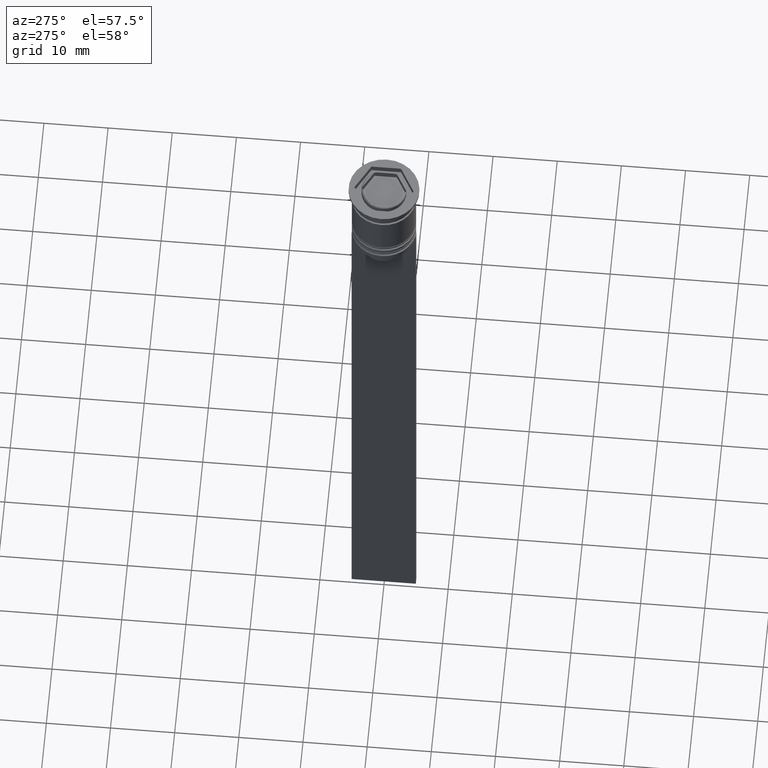
[diagram: clean part render]
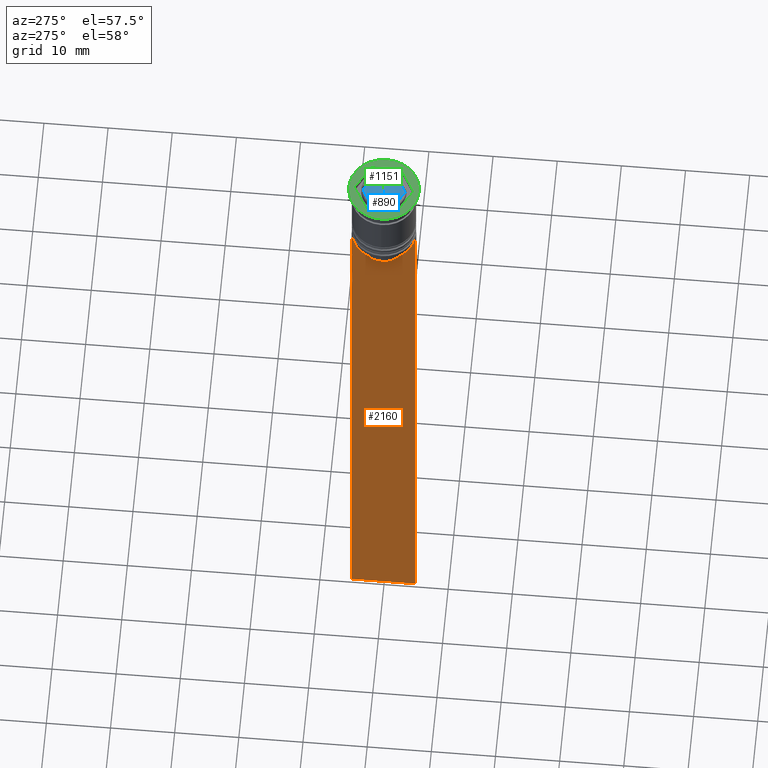
[diagram: same view with three faces highlighted in distinct colors, each labeled with its STEP entity id]
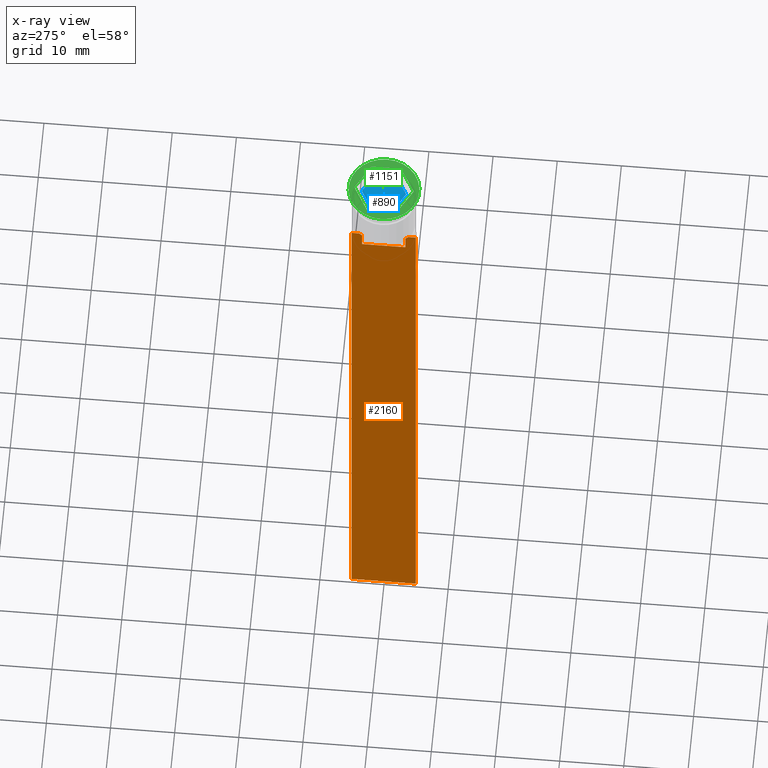
[diagram: x-ray of the same camera — body ghosted, the three highlighted faces saturated]
A machine part, auxiliary view with three faces highlighted in distinct colors.
The next image is the same camera in x-ray (body ghosted, the three faces saturated) — at least one of them is partly hidden behind the body in this view.
Their STEP definitions:

[orange] entity #2160 — the highlighted planar face has unit normal (-1, 0, 0).
#68 = ORIENTED_EDGE ( 'NONE', *, *, #1743, .F. ) ;
#85 = VECTOR ( 'NONE', #1137, 1000.000000000000000 ) ;
#95 = EDGE_CURVE ( 'NONE', #1745, #1103, #1935, .T. ) ;
#111 = DIRECTION ( 'NONE',  ( -1.000000000000000000, 0.000000000000000000, 0.000000000000000000 ) ) ;
#117 = VERTEX_POINT ( 'NONE', #956 ) ;
#145 = DIRECTION ( 'NONE',  ( 0.000000000000000000, 1.000000000000000000, 0.000000000000000000 ) ) ;
#165 = CARTESIAN_POINT ( 'NONE',  ( -0.5000000000000000000, 5.000000000000000888, -12.50000000000000000 ) ) ;
#172 = CARTESIAN_POINT ( 'NONE',  ( -0.5000000000000000000, -3.699658232838647365, -12.66676999593996555 ) ) ;
#191 = EDGE_LOOP ( 'NONE', ( #1365, #1288, #1569, #334, #2091, #2148, #1248, #68, #2060, #1052, #1107, #2568 ) ) ;
#192 = CARTESIAN_POINT ( 'NONE',  ( -0.5000000000000000000, 5.000000000000000888, -112.5000000000000000 ) ) ;
#273 = CARTESIAN_POINT ( 'NONE',  ( -0.5000000000000000000, -4.999999999999999112, -12.50000000000000000 ) ) ;
#277 = EDGE_CURVE ( 'NONE', #1058, #2197, #399, .T. ) ;
#297 = CARTESIAN_POINT ( 'NONE',  ( -0.5000000000000000000, -3.363034344160045652, -15.50000000000000000 ) ) ;
#321 = VECTOR ( 'NONE', #2280, 1000.000000000000000 ) ;
#334 = ORIENTED_EDGE ( 'NONE', *, *, #1363, .T. ) ;
#370 = CARTESIAN_POINT ( 'NONE',  ( -0.5000000000000000000, -4.999999999999999112, -112.5000000000000000 ) ) ;
#399 = LINE ( 'NONE', #2224, #1889 ) ;
#436 = CARTESIAN_POINT ( 'NONE',  ( -0.5000000000000000000, -3.867815921162742754, -12.50000000000000000 ) ) ;
#474 = CARTESIAN_POINT ( 'NONE',  ( -0.5000000000000000000, 3.363034344160045208, -13.00000000000000178 ) ) ;
#485 = DIRECTION ( 'NONE',  ( 0.000000000000000000, -1.000000000000000000, 0.000000000000000000 ) ) ;
#496 = DIRECTION ( 'NONE',  ( 0.000000000000000000, 0.000000000000000000, 1.000000000000000000 ) ) ;
#498 = CARTESIAN_POINT ( 'NONE',  ( -0.5000000000000000000, -4.999999999999999112, -12.50000000000000000 ) ) ;
#499 = VECTOR ( 'NONE', #513, 1000.000000000000000 ) ;
#513 = DIRECTION ( 'NONE',  ( 0.000000000000000000, -1.000000000000000000, 0.000000000000000000 ) ) ;
#589 = CARTESIAN_POINT ( 'NONE',  ( -0.5000000000000000000, -4.999999999999999112, -12.50000000000000000 ) ) ;
#615 = VECTOR ( 'NONE', #2256, 1000.000000000000000 ) ;
#641 = EDGE_CURVE ( 'NONE', #2197, #117, #1787, .T. ) ;
#685 = DIRECTION ( 'NONE',  ( 0.000000000000000000, -1.000000000000000000, 0.000000000000000000 ) ) ;
#730 = PLANE ( 'NONE',  #2381 ) ;
#732 = CARTESIAN_POINT ( 'NONE',  ( -0.5000000000000000000, -4.999999999999999112, -112.5000000000000000 ) ) ;
#733 = EDGE_CURVE ( 'NONE', #2115, #1806, #1808, .T. ) ;
#746 = CARTESIAN_POINT ( 'NONE',  ( -0.5000000000000000000, -4.999999999999999112, -12.50000000000000000 ) ) ;
#898 = CARTESIAN_POINT ( 'NONE',  ( -0.5000000000000000000, 3.363034344160045208, 0.000000000000000000 ) ) ;
#902 = VERTEX_POINT ( 'NONE', #1734 ) ;
#925 = VECTOR ( 'NONE', #145, 1000.000000000000000 ) ;
#956 = CARTESIAN_POINT ( 'NONE',  ( -0.5000000000000000000, -3.363034344160045208, -13.00000000000000178 ) ) ;
#1004 = CARTESIAN_POINT ( 'NONE',  ( -0.5000000000000000000, -3.363034344160045208, 0.000000000000000000 ) ) ;
#1052 = ORIENTED_EDGE ( 'NONE', *, *, #641, .F. ) ;
#1058 = VERTEX_POINT ( 'NONE', #2360 ) ;
#1080 = CARTESIAN_POINT ( 'NONE',  ( -0.5000000000000000000, -3.363034344160045208, -13.00000000000000178 ) ) ;
#1103 = VERTEX_POINT ( 'NONE', #192 ) ;
#1107 = ORIENTED_EDGE ( 'NONE', *, *, #277, .F. ) ;
#1124 = CARTESIAN_POINT ( 'NONE',  ( -0.5000000000000000000, -4.999999999999999112, -2.450124378879110054 ) ) ;
#1137 = DIRECTION ( 'NONE',  ( 0.000000000000000000, 0.000000000000000000, -1.000000000000000000 ) ) ;
#1141 = CARTESIAN_POINT ( 'NONE',  ( -0.5000000000000000000, 4.874423042781575788, -12.50000000000000000 ) ) ;
#1163 = DIRECTION ( 'NONE',  ( -0.000000000000000000, -0.000000000000000000, 1.000000000000000000 ) ) ;
#1166 = CARTESIAN_POINT ( 'NONE',  ( -0.5000000000000000000, -3.531412985305424801, -12.83345201382502765 ) ) ;
#1169 = VECTOR ( 'NONE', #485, 1000.000000000000000 ) ;
#1246 = DIRECTION ( 'NONE',  ( 0.000000000000000000, -1.000000000000000000, 0.000000000000000000 ) ) ;
#1248 = ORIENTED_EDGE ( 'NONE', *, *, #2001, .F. ) ;
#1252 = VECTOR ( 'NONE', #2457, 1000.000000000000000 ) ;
#1279 = CARTESIAN_POINT ( 'NONE',  ( -0.5000000000000000000, -4.999999999999999112, -12.50000000000000000 ) ) ;
#1282 = EDGE_CURVE ( 'NONE', #1860, #1745, #2426, .T. ) ;
#1288 = ORIENTED_EDGE ( 'NONE', *, *, #1598, .F. ) ;
#1292 = FACE_OUTER_BOUND ( 'NONE', #191, .T. ) ;
#1314 = LINE ( 'NONE', #2488, #321 ) ;
#1363 = EDGE_CURVE ( 'NONE', #2275, #1103, #1314, .T. ) ;
#1365 = ORIENTED_EDGE ( 'NONE', *, *, #733, .F. ) ;
#1413 = VECTOR ( 'NONE', #685, 1000.000000000000000 ) ;
#1443 = EDGE_CURVE ( 'NONE', #117, #1536, #2518, .T. ) ;
#1459 = CARTESIAN_POINT ( 'NONE',  ( -0.5000000000000000000, -4.999999999999999112, -2.450124378879110054 ) ) ;
#1536 = VERTEX_POINT ( 'NONE', #436 ) ;
#1568 = EDGE_CURVE ( 'NONE', #2275, #1802, #1664, .T. ) ;
#1569 = ORIENTED_EDGE ( 'NONE', *, *, #1568, .F. ) ;
#1598 = EDGE_CURVE ( 'NONE', #1802, #2115, #1870, .T. ) ;
#1659 = CARTESIAN_POINT ( 'NONE',  ( -0.5000000000000000000, 3.699657965831574913, -12.66677026074361301 ) ) ;
#1664 = LINE ( 'NONE', #273, #1252 ) ;
#1727 = LINE ( 'NONE', #746, #499 ) ;
#1734 = CARTESIAN_POINT ( 'NONE',  ( -0.5000000000000000000, -4.874423042781575788, -12.50000000000000000 ) ) ;
#1743 = EDGE_CURVE ( 'NONE', #1536, #902, #1727, .T. ) ;
#1745 = VERTEX_POINT ( 'NONE', #732 ) ;
#1747 = LINE ( 'NONE', #898, #85 ) ;
#1787 = LINE ( 'NONE', #1004, #2220 ) ;
#1802 = VERTEX_POINT ( 'NONE', #1141 ) ;
#1806 = VERTEX_POINT ( 'NONE', #2128 ) ;
#1808 = B_SPLINE_CURVE_WITH_KNOTS ( 'NONE', 3,
 ( #1812, #1659, #1824, #474 ),
 .UNSPECIFIED., .F., .F.,
 ( 4, 4 ),
 ( 0.006644825462451552783, 0.007355321358912435097 ),
 .UNSPECIFIED. ) ;
#1812 = CARTESIAN_POINT ( 'NONE',  ( -0.5000000000000000000, 3.867815921162742754, -12.50000000000000000 ) ) ;
#1824 = CARTESIAN_POINT ( 'NONE',  ( -0.5000000000000000000, 3.531412678228260216, -12.83345231756357840 ) ) ;
#1860 = VERTEX_POINT ( 'NONE', #589 ) ;
#1870 = LINE ( 'NONE', #498, #1413 ) ;
#1889 = VECTOR ( 'NONE', #1246, 1000.000000000000000 ) ;
#1935 = LINE ( 'NONE', #370, #925 ) ;
#1962 = CARTESIAN_POINT ( 'NONE',  ( -0.5000000000000000000, -3.867815921162742754, -12.50000000000000000 ) ) ;
#2001 = EDGE_CURVE ( 'NONE', #902, #1860, #2021, .T. ) ;
#2021 = LINE ( 'NONE', #1279, #1169 ) ;
#2060 = ORIENTED_EDGE ( 'NONE', *, *, #1443, .F. ) ;
#2091 = ORIENTED_EDGE ( 'NONE', *, *, #95, .F. ) ;
#2115 = VERTEX_POINT ( 'NONE', #2442 ) ;
#2128 = CARTESIAN_POINT ( 'NONE',  ( -0.5000000000000000000, 3.363034344160045208, -13.00000000000000178 ) ) ;
#2148 = ORIENTED_EDGE ( 'NONE', *, *, #1282, .F. ) ;
#2160 = ADVANCED_FACE ( 'NONE', ( #1292 ), #730, .T. ) ;
#2197 = VERTEX_POINT ( 'NONE', #297 ) ;
#2204 = EDGE_CURVE ( 'NONE', #1806, #1058, #1747, .T. ) ;
#2220 = VECTOR ( 'NONE', #1163, 1000.000000000000000 ) ;
#2224 = CARTESIAN_POINT ( 'NONE',  ( -0.5000000000000000000, 3.399999999999998135, -15.50000000000000000 ) ) ;
#2256 = DIRECTION ( 'NONE',  ( 0.000000000000000000, 0.000000000000000000, -1.000000000000000000 ) ) ;
#2275 = VERTEX_POINT ( 'NONE', #165 ) ;
#2280 = DIRECTION ( 'NONE',  ( 0.000000000000000000, 0.000000000000000000, -1.000000000000000000 ) ) ;
#2360 = CARTESIAN_POINT ( 'NONE',  ( -0.5000000000000000000, 3.363034344160045652, -15.50000000000000000 ) ) ;
#2381 = AXIS2_PLACEMENT_3D ( 'NONE', #1124, #111, #496 ) ;
#2426 = LINE ( 'NONE', #1459, #615 ) ;
#2442 = CARTESIAN_POINT ( 'NONE',  ( -0.5000000000000000000, 3.867815921162742754, -12.50000000000000000 ) ) ;
#2457 = DIRECTION ( 'NONE',  ( 0.000000000000000000, -1.000000000000000000, 0.000000000000000000 ) ) ;
#2488 = CARTESIAN_POINT ( 'NONE',  ( -0.5000000000000000000, 5.000000000000000888, -2.450124378879110054 ) ) ;
#2518 = B_SPLINE_CURVE_WITH_KNOTS ( 'NONE', 3,
 ( #1080, #1166, #172, #1962 ),
 .UNSPECIFIED., .F., .F.,
 ( 4, 4 ),
 ( 0.01632394437298965648, 0.01703543518243618576 ),
 .UNSPECIFIED. ) ;
#2568 = ORIENTED_EDGE ( 'NONE', *, *, #2204, .F. ) ;

[blue] entity #890 — the highlighted planar face has unit normal (0, 0, 1).
#18 = ORIENTED_EDGE ( 'NONE', *, *, #2471, .F. ) ;
#27 = LINE ( 'NONE', #1210, #867 ) ;
#89 = EDGE_CURVE ( 'NONE', #959, #2437, #784, .T. ) ;
#234 = CARTESIAN_POINT ( 'NONE',  ( -2.168404344971008868E-16, -3.464101615137754386, -1.000000000000000888 ) ) ;
#296 = CARTESIAN_POINT ( 'NONE',  ( -3.000000000000000000, 1.732050807568876971, -1.000000000000000888 ) ) ;
#357 = EDGE_CURVE ( 'NONE', #2487, #1328, #1576, .T. ) ;
#466 = VECTOR ( 'NONE', #872, 999.9999999999998863 ) ;
#477 = VECTOR ( 'NONE', #2357, 1000.000000000000000 ) ;
#529 = ORIENTED_EDGE ( 'NONE', *, *, #1550, .F. ) ;
#539 = VECTOR ( 'NONE', #1030, 999.9999999999998863 ) ;
#542 = CARTESIAN_POINT ( 'NONE',  ( 2.999999999999999112, -1.732050807568877637, -1.000000000000000888 ) ) ;
#635 = CARTESIAN_POINT ( 'NONE',  ( 3.000000000000000888, 1.732050807568877193, -1.000000000000000888 ) ) ;
#784 = LINE ( 'NONE', #2519, #1763 ) ;
#867 = VECTOR ( 'NONE', #2574, 1000.000000000000114 ) ;
#872 = DIRECTION ( 'NONE',  ( -0.8660254037844387076, 0.4999999999999999445, 0.000000000000000000 ) ) ;
#885 = CARTESIAN_POINT ( 'NONE',  ( 0.000000000000000000, 0.000000000000000000, -1.000000000000000000 ) ) ;
#890 = ADVANCED_FACE ( 'NONE', ( #2513 ), #1317, .T. ) ;
#959 = VERTEX_POINT ( 'NONE', #296 ) ;
#975 = VERTEX_POINT ( 'NONE', #1108 ) ;
#985 = CARTESIAN_POINT ( 'NONE',  ( 0.000000000000000000, 3.464101615137754386, -1.000000000000000888 ) ) ;
#1030 = DIRECTION ( 'NONE',  ( -0.8660254037844387076, -0.5000000000000001110, 0.000000000000000000 ) ) ;
#1083 = LINE ( 'NONE', #2454, #466 ) ;
#1108 = CARTESIAN_POINT ( 'NONE',  ( -3.000000000000000000, -1.732050807568876527, -1.000000000000000888 ) ) ;
#1164 = CARTESIAN_POINT ( 'NONE',  ( -4.336808689942017736E-16, -3.464101615137753942, -1.000000000000000888 ) ) ;
#1210 = CARTESIAN_POINT ( 'NONE',  ( 3.000000000000000888, 1.732050807568877415, -1.000000000000000888 ) ) ;
#1234 = ORIENTED_EDGE ( 'NONE', *, *, #2048, .F. ) ;
#1290 = DIRECTION ( 'NONE',  ( 1.000000000000000000, 0.000000000000000000, -0.000000000000000000 ) ) ;
#1317 = PLANE ( 'NONE',  #1468 ) ;
#1328 = VERTEX_POINT ( 'NONE', #1876 ) ;
#1468 = AXIS2_PLACEMENT_3D ( 'NONE', #885, #1527, #1290 ) ;
#1505 = VECTOR ( 'NONE', #1676, 1000.000000000000000 ) ;
#1512 = ORIENTED_EDGE ( 'NONE', *, *, #357, .F. ) ;
#1527 = DIRECTION ( 'NONE',  ( 0.000000000000000000, 0.000000000000000000, 1.000000000000000000 ) ) ;
#1550 = EDGE_CURVE ( 'NONE', #1328, #1859, #2584, .T. ) ;
#1552 = EDGE_LOOP ( 'NONE', ( #18, #1965, #1758, #1234, #529, #1512 ) ) ;
#1576 = LINE ( 'NONE', #542, #477 ) ;
#1649 = CARTESIAN_POINT ( 'NONE',  ( -3.000000000000000000, 1.732050807568876971, -1.000000000000000888 ) ) ;
#1676 = DIRECTION ( 'NONE',  ( 0.000000000000000000, 1.000000000000000000, 0.000000000000000000 ) ) ;
#1758 = ORIENTED_EDGE ( 'NONE', *, *, #2098, .F. ) ;
#1763 = VECTOR ( 'NONE', #1769, 999.9999999999998863 ) ;
#1769 = DIRECTION ( 'NONE',  ( 0.8660254037844387076, 0.4999999999999999445, -0.000000000000000000 ) ) ;
#1859 = VERTEX_POINT ( 'NONE', #1164 ) ;
#1876 = CARTESIAN_POINT ( 'NONE',  ( 2.999999999999999112, -1.732050807568877193, -1.000000000000000888 ) ) ;
#1965 = ORIENTED_EDGE ( 'NONE', *, *, #89, .F. ) ;
#2048 = EDGE_CURVE ( 'NONE', #1859, #975, #1083, .T. ) ;
#2098 = EDGE_CURVE ( 'NONE', #975, #959, #2480, .T. ) ;
#2357 = DIRECTION ( 'NONE',  ( -5.007715329123864752E-16, -1.000000000000000000, 0.000000000000000000 ) ) ;
#2437 = VERTEX_POINT ( 'NONE', #985 ) ;
#2454 = CARTESIAN_POINT ( 'NONE',  ( -3.000000000000000000, -1.732050807568876971, -1.000000000000000888 ) ) ;
#2471 = EDGE_CURVE ( 'NONE', #2437, #2487, #27, .T. ) ;
#2480 = LINE ( 'NONE', #1649, #1505 ) ;
#2487 = VERTEX_POINT ( 'NONE', #635 ) ;
#2513 = FACE_OUTER_BOUND ( 'NONE', #1552, .T. ) ;
#2519 = CARTESIAN_POINT ( 'NONE',  ( 0.000000000000000000, 3.464101615137754386, -1.000000000000000888 ) ) ;
#2574 = DIRECTION ( 'NONE',  ( 0.8660254037844387076, -0.4999999999999997780, 0.000000000000000000 ) ) ;
#2584 = LINE ( 'NONE', #234, #539 ) ;

[green] entity #1151 — the highlighted planar face has unit normal (0, -0, 1).
#41 = EDGE_LOOP ( 'NONE', ( #428, #1262 ) ) ;
#60 = LINE ( 'NONE', #1214, #1073 ) ;
#75 = CARTESIAN_POINT ( 'NONE',  ( 5.500000000000000000, 0.000000000000000000, 0.000000000000000000 ) ) ;
#83 = DIRECTION ( 'NONE',  ( -0.000000000000000000, -0.000000000000000000, 1.000000000000000000 ) ) ;
#91 = CARTESIAN_POINT ( 'NONE',  ( -4.000000000000000000, -2.309401076758503368, 0.000000000000000000 ) ) ;
#104 = LINE ( 'NONE', #1908, #2207 ) ;
#116 = CIRCLE ( 'NONE', #1537, 5.500000000000000000 ) ;
#228 = ORIENTED_EDGE ( 'NONE', *, *, #953, .F. ) ;
#239 = VECTOR ( 'NONE', #2334, 1000.000000000000000 ) ;
#272 = LINE ( 'NONE', #2261, #2464 ) ;
#291 = CARTESIAN_POINT ( 'NONE',  ( 0.000000000000000000, 0.000000000000000000, 0.000000000000000000 ) ) ;
#302 = DIRECTION ( 'NONE',  ( 1.000000000000000000, 0.000000000000000000, 0.000000000000000000 ) ) ;
#332 = CIRCLE ( 'NONE', #2252, 5.500000000000000000 ) ;
#377 = FACE_BOUND ( 'NONE', #2472, .T. ) ;
#428 = ORIENTED_EDGE ( 'NONE', *, *, #2559, .T. ) ;
#479 = DIRECTION ( 'NONE',  ( 0.8660254037844384856, 0.5000000000000001110, 0.000000000000000000 ) ) ;
#487 = CARTESIAN_POINT ( 'NONE',  ( 4.000000000000000000, -2.309401076758503368, 0.000000000000000000 ) ) ;
#502 = ORIENTED_EDGE ( 'NONE', *, *, #1241, .F. ) ;
#570 = FACE_OUTER_BOUND ( 'NONE', #41, .T. ) ;
#646 = CARTESIAN_POINT ( 'NONE',  ( -5.500000000000000000, 6.735557395310442023E-16, 0.000000000000000000 ) ) ;
#659 = AXIS2_PLACEMENT_3D ( 'NONE', #807, #1609, #2401 ) ;
#684 = CARTESIAN_POINT ( 'NONE',  ( 4.000000000000000000, 2.309401076758503368, 0.000000000000000000 ) ) ;
#764 = VERTEX_POINT ( 'NONE', #1253 ) ;
#782 = VERTEX_POINT ( 'NONE', #2047 ) ;
#794 = VECTOR ( 'NONE', #2087, 1000.000000000000000 ) ;
#807 = CARTESIAN_POINT ( 'NONE',  ( 0.000000000000000000, 0.000000000000000000, 0.000000000000000000 ) ) ;
#866 = DIRECTION ( 'NONE',  ( 1.000000000000000000, 0.000000000000000000, 0.000000000000000000 ) ) ;
#937 = LINE ( 'NONE', #2525, #239 ) ;
#942 = ORIENTED_EDGE ( 'NONE', *, *, #1647, .F. ) ;
#953 = EDGE_CURVE ( 'NONE', #2042, #764, #937, .T. ) ;
#1045 = LINE ( 'NONE', #2445, #1792 ) ;
#1073 = VECTOR ( 'NONE', #1446, 1000.000000000000000 ) ;
#1151 = ADVANCED_FACE ( 'NONE', ( #377, #570 ), #1993, .T. ) ;
#1214 = CARTESIAN_POINT ( 'NONE',  ( 4.000000000000000000, 2.309401076758503368, 0.000000000000000000 ) ) ;
#1241 = EDGE_CURVE ( 'NONE', #2359, #782, #60, .T. ) ;
#1253 = CARTESIAN_POINT ( 'NONE',  ( 8.729740977282959667E-16, -4.618802153517006737, 0.000000000000000000 ) ) ;
#1262 = ORIENTED_EDGE ( 'NONE', *, *, #1699, .T. ) ;
#1446 = DIRECTION ( 'NONE',  ( -0.8660254037844387076, 0.4999999999999998890, 0.000000000000000000 ) ) ;
#1537 = AXIS2_PLACEMENT_3D ( 'NONE', #291, #83, #866 ) ;
#1609 = DIRECTION ( 'NONE',  ( 0.000000000000000000, -0.000000000000000000, 1.000000000000000000 ) ) ;
#1628 = ORIENTED_EDGE ( 'NONE', *, *, #2179, .F. ) ;
#1638 = VERTEX_POINT ( 'NONE', #487 ) ;
#1647 = EDGE_CURVE ( 'NONE', #2122, #2042, #1045, .T. ) ;
#1690 = DIRECTION ( 'NONE',  ( -0.000000000000000000, -0.000000000000000000, 1.000000000000000000 ) ) ;
#1699 = EDGE_CURVE ( 'NONE', #1716, #2069, #332, .T. ) ;
#1701 = DIRECTION ( 'NONE',  ( -0.8660254037844385966, -0.5000000000000000000, 0.000000000000000000 ) ) ;
#1716 = VERTEX_POINT ( 'NONE', #646 ) ;
#1724 = LINE ( 'NONE', #1905, #794 ) ;
#1748 = EDGE_CURVE ( 'NONE', #782, #2122, #104, .T. ) ;
#1792 = VECTOR ( 'NONE', #2075, 1000.000000000000000 ) ;
#1856 = CARTESIAN_POINT ( 'NONE',  ( 0.000000000000000000, 0.000000000000000000, 0.000000000000000000 ) ) ;
#1905 = CARTESIAN_POINT ( 'NONE',  ( 4.000000000000000000, -2.309401076758503368, 0.000000000000000000 ) ) ;
#1908 = CARTESIAN_POINT ( 'NONE',  ( 0.000000000000000000, 4.618802153517005848, 0.000000000000000000 ) ) ;
#1993 = PLANE ( 'NONE',  #659 ) ;
#2042 = VERTEX_POINT ( 'NONE', #91 ) ;
#2047 = CARTESIAN_POINT ( 'NONE',  ( 0.000000000000000000, 4.618802153517005848, 0.000000000000000000 ) ) ;
#2069 = VERTEX_POINT ( 'NONE', #75 ) ;
#2075 = DIRECTION ( 'NONE',  ( 0.000000000000000000, -1.000000000000000000, 0.000000000000000000 ) ) ;
#2087 = DIRECTION ( 'NONE',  ( 0.000000000000000000, 1.000000000000000000, 0.000000000000000000 ) ) ;
#2122 = VERTEX_POINT ( 'NONE', #2430 ) ;
#2179 = EDGE_CURVE ( 'NONE', #1638, #2359, #1724, .T. ) ;
#2207 = VECTOR ( 'NONE', #1701, 1000.000000000000227 ) ;
#2252 = AXIS2_PLACEMENT_3D ( 'NONE', #1856, #1690, #302 ) ;
#2261 = CARTESIAN_POINT ( 'NONE',  ( 8.729740977282959667E-16, -4.618802153517006737, 0.000000000000000000 ) ) ;
#2313 = EDGE_CURVE ( 'NONE', #764, #1638, #272, .T. ) ;
#2334 = DIRECTION ( 'NONE',  ( 0.8660254037844387076, -0.4999999999999999445, 0.000000000000000000 ) ) ;
#2359 = VERTEX_POINT ( 'NONE', #684 ) ;
#2401 = DIRECTION ( 'NONE',  ( 1.000000000000000000, 0.000000000000000000, 0.000000000000000000 ) ) ;
#2430 = CARTESIAN_POINT ( 'NONE',  ( -4.000000000000000000, 2.309401076758502480, 0.000000000000000000 ) ) ;
#2445 = CARTESIAN_POINT ( 'NONE',  ( -4.000000000000000000, 2.309401076758502480, 0.000000000000000000 ) ) ;
#2464 = VECTOR ( 'NONE', #479, 1000.000000000000227 ) ;
#2472 = EDGE_LOOP ( 'NONE', ( #502, #1628, #2523, #228, #942, #2512 ) ) ;
#2512 = ORIENTED_EDGE ( 'NONE', *, *, #1748, .F. ) ;
#2523 = ORIENTED_EDGE ( 'NONE', *, *, #2313, .F. ) ;
#2525 = CARTESIAN_POINT ( 'NONE',  ( -4.000000000000000000, -2.309401076758503368, 0.000000000000000000 ) ) ;
#2559 = EDGE_CURVE ( 'NONE', #2069, #1716, #116, .T. ) ;